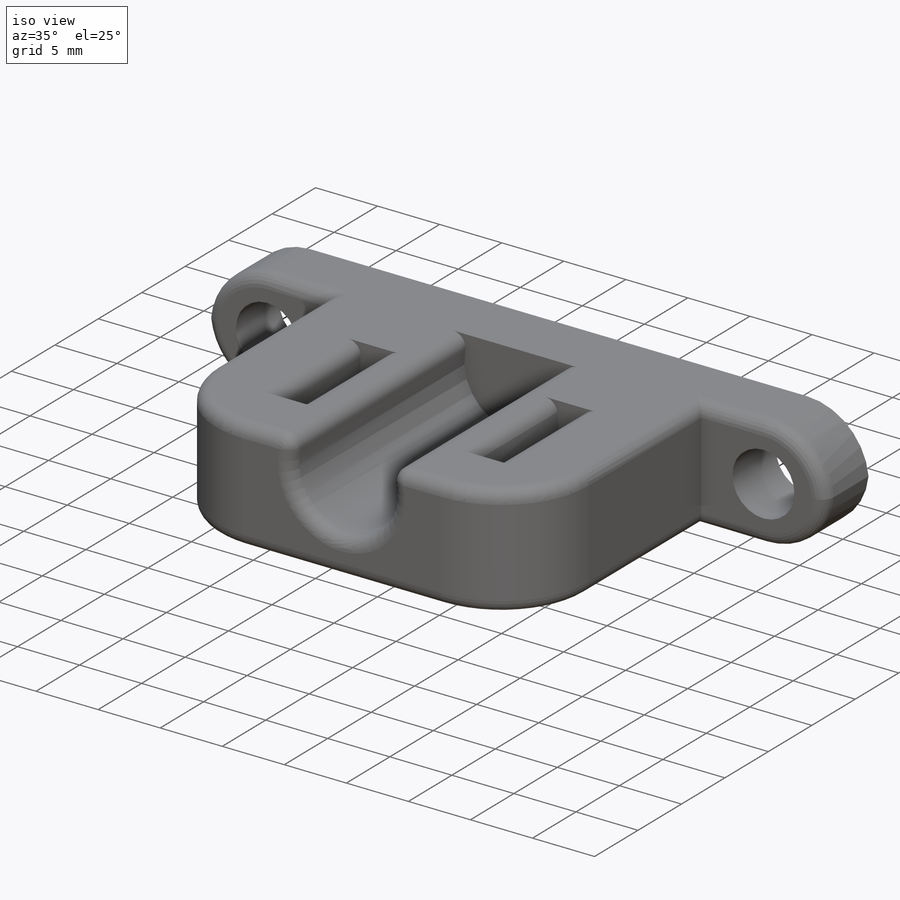
[diagram: iso view]
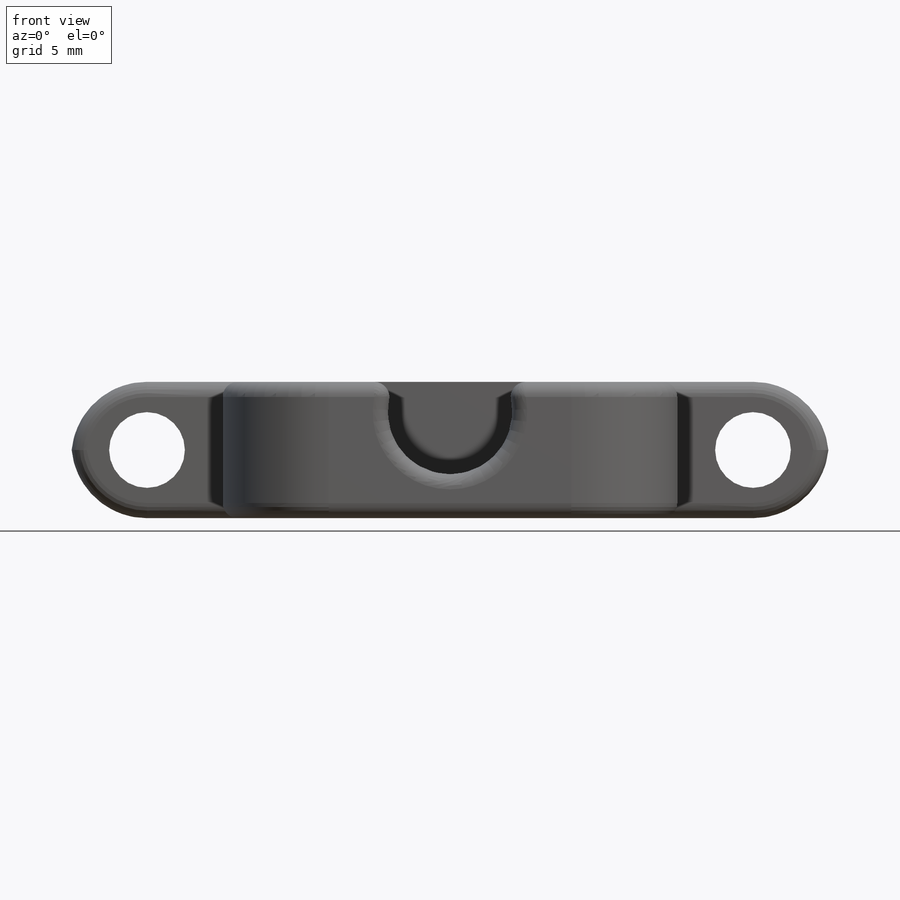
[diagram: front view]
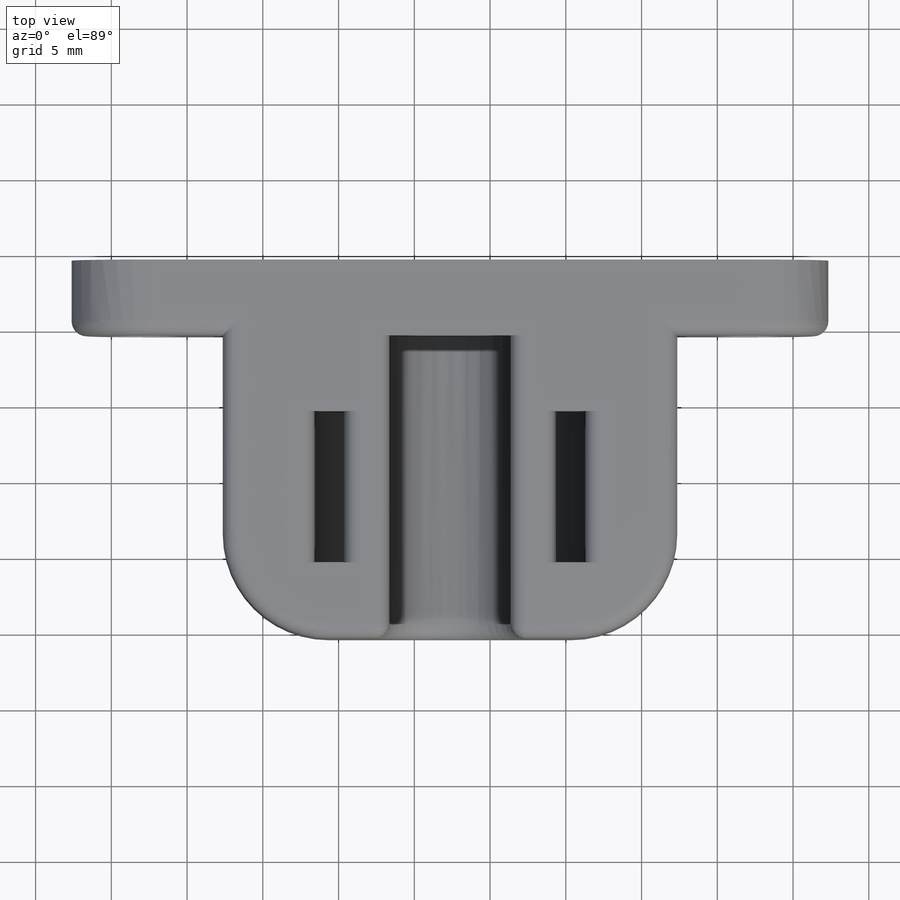
[diagram: top view]
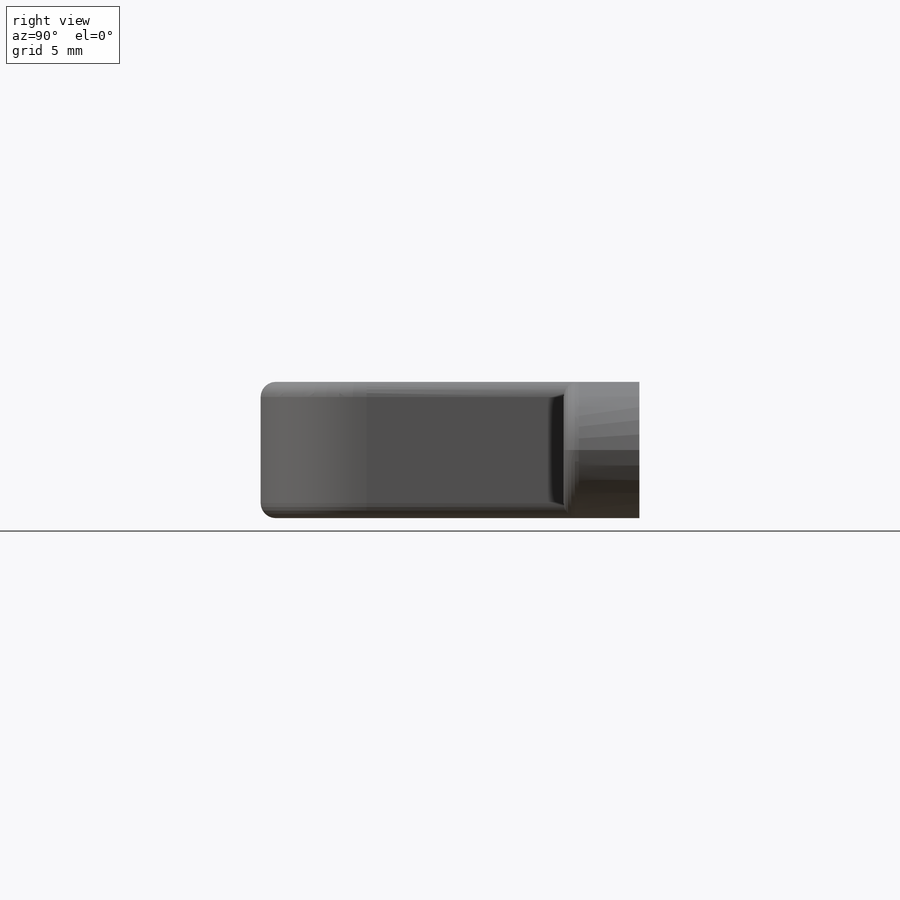
[diagram: right view]
SOLIDWORKS PART (.sldprt)
format: sldprt  version: not decoded by parser v0  size: 407,552 bytes
history: native  units: mm
features: sketch x9, fillet x8, cut_extrude x6, extrude x3, material x1 (+12 scaffold rows collapsed)
feature tree (39):
  scaffold x12  (default folders/planes/origin — collapsed)
  material  "Custom Plastic"
  sketch  "Sketch1"  dims[D1=30.0mm D2=20.0mm]
  extrude  "Boss-Extrude1"  Depth=20mm
  sketch  "Sketch3"  dims[D1=~11.53619mm]
  cut_extrude  "Cut-Extrude2"  Depth=15mm
  sketch  "Sketch4"  dims[D1=7.0mm]
  cut_extrude  "Cut-Extrude3"  Depth=26mm
  sketch  "Sketch5"  dims[D1=50.0mm D2=10.0mm]
  extrude  "Boss-Extrude3"  Depth=5mm
  sketch  "Sketch6"  dims[D1=~11.280204mm]
  cut_extrude  "Cut-Extrude4"  Depth=5mm
  sketch  "Sketch7"  dims[D1=~3.161801mm]
  cut_extrude  "Cut-Extrude5"  Depth=5mm
  sketch  "Sketch8"  dims[D1=4.0mm]
  cut_extrude  "Cut-Extrude6"  Depth=29mm
  sketch  "Sketch9"
  extrude  "Boss-Extrude4"  Depth=5mm
  sketch  "Sketch2"  dims[D1=20.0mm]
  cut_extrude  "Cut-Extrude1"  Depth=20mm
  fillet  "Fillet1"  Radius=5mm
  fillet  "Fillet3"  Radius=1mm
  fillet  "Fillet4"  Radius=1mm
  fillet  "Fillet5"  Radius=1mm
  fillet  "Fillet6"  Radius=7mm
  fillet  "Fillet7"  Radius=1mm
  fillet  "Fillet8"  Radius=1mm
  fillet  "Fillet9"  Radius=1mm
decode coverage: 25 of 26 modeling features carry decoded parameters
note: ~ marks probable driven/reference dimensions
note: suppression state not decoded; provenance and decode notes live in map.json
